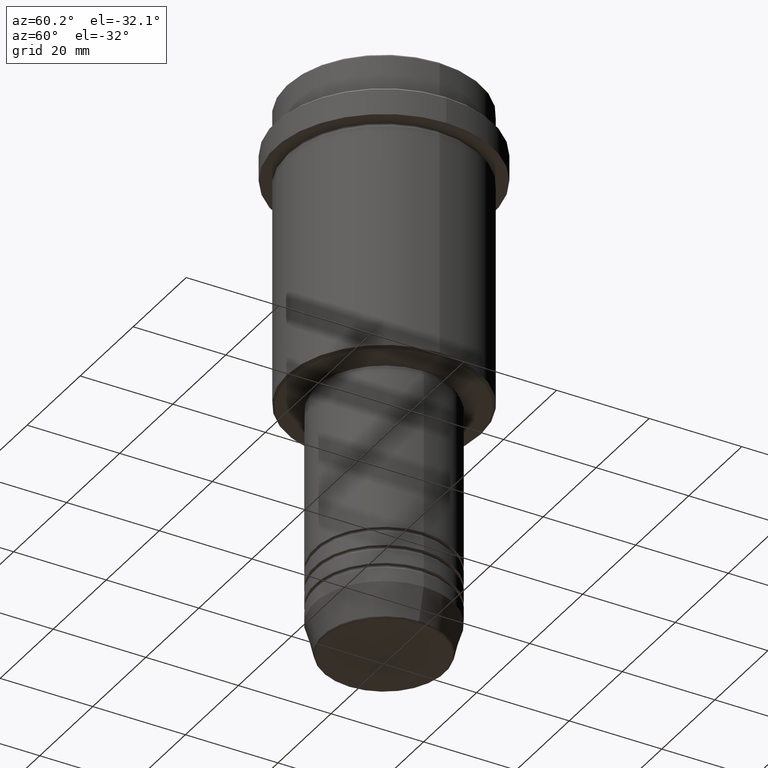
[diagram: clean part render]
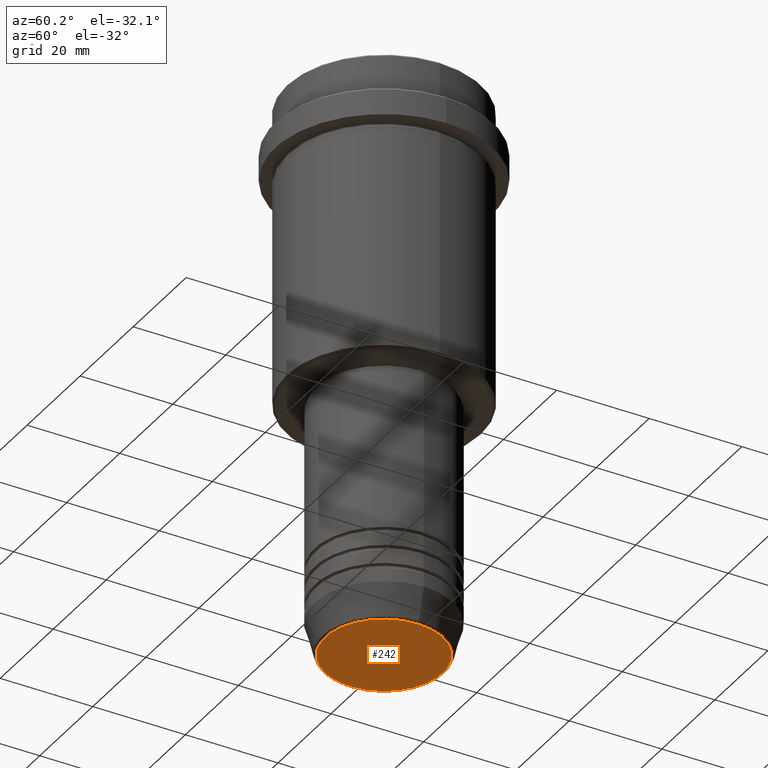
[diagram: same view with one face highlighted and labeled with its STEP entity id]
A machine part, auxiliary view. The second image highlights one B-rep face of the part: STEP entity #242.
In plain terms, the highlighted planar face has unit normal (0, -0, 1).
Its self-contained STEP definition (entity closure, byte-faithful):
#49 = VERTEX_POINT ( 'NONE', #994 ) ;
#94 = EDGE_CURVE ( 'NONE', #49, #760, #1294, .T. ) ;
#183 = CARTESIAN_POINT ( 'NONE',  ( 0.000000000000000000, 0.000000000000000000, -120.0000000000000000 ) ) ;
#220 = DIRECTION ( 'NONE',  ( 0.000000000000000000, -0.000000000000000000, 1.000000000000000000 ) ) ;
#239 = DIRECTION ( 'NONE',  ( 1.000000000000000000, 0.000000000000000000, 0.000000000000000000 ) ) ;
#242 = ADVANCED_FACE ( 'NONE', ( #1401 ), #666, .F. ) ;
#260 = DIRECTION ( 'NONE',  ( 0.000000000000000000, 0.000000000000000000, -1.000000000000000000 ) ) ;
#296 = DIRECTION ( 'NONE',  ( 1.000000000000000000, 0.000000000000000000, 0.000000000000000000 ) ) ;
#312 = CARTESIAN_POINT ( 'NONE',  ( 0.000000000000000000, 0.000000000000000000, -120.0000000000000000 ) ) ;
#431 = CARTESIAN_POINT ( 'NONE',  ( 12.74069215899265828, 0.000000000000000000, -120.0000000000000000 ) ) ;
#587 = DIRECTION ( 'NONE',  ( 1.000000000000000000, 0.000000000000000000, 0.000000000000000000 ) ) ;
#608 = AXIS2_PLACEMENT_3D ( 'NONE', #183, #1045, #296 ) ;
#643 = EDGE_LOOP ( 'NONE', ( #860, #1349 ) ) ;
#666 = PLANE ( 'NONE',  #1044 ) ;
#760 = VERTEX_POINT ( 'NONE', #431 ) ;
#775 = AXIS2_PLACEMENT_3D ( 'NONE', #1337, #260, #587 ) ;
#860 = ORIENTED_EDGE ( 'NONE', *, *, #879, .T. ) ;
#862 = CIRCLE ( 'NONE', #775, 12.74069215899265828 ) ;
#879 = EDGE_CURVE ( 'NONE', #760, #49, #862, .T. ) ;
#994 = CARTESIAN_POINT ( 'NONE',  ( -12.74069215899265828, 1.589857736427681035E-15, -120.0000000000000000 ) ) ;
#1044 = AXIS2_PLACEMENT_3D ( 'NONE', #312, #220, #239 ) ;
#1045 = DIRECTION ( 'NONE',  ( 0.000000000000000000, 0.000000000000000000, -1.000000000000000000 ) ) ;
#1294 = CIRCLE ( 'NONE', #608, 12.74069215899265828 ) ;
#1337 = CARTESIAN_POINT ( 'NONE',  ( 0.000000000000000000, 0.000000000000000000, -120.0000000000000000 ) ) ;
#1349 = ORIENTED_EDGE ( 'NONE', *, *, #94, .T. ) ;
#1401 = FACE_OUTER_BOUND ( 'NONE', #643, .T. ) ;